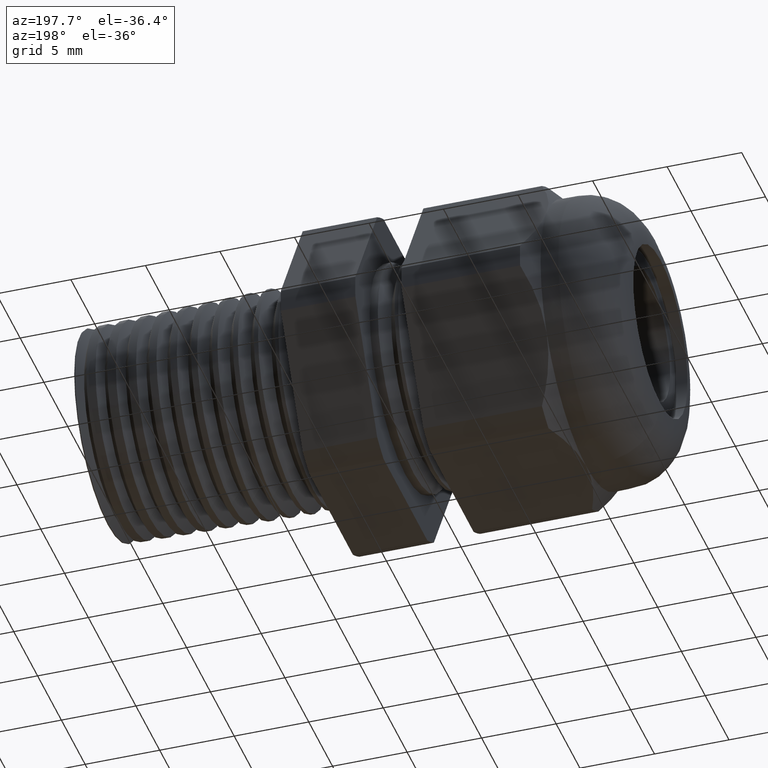
[diagram: clean part render]
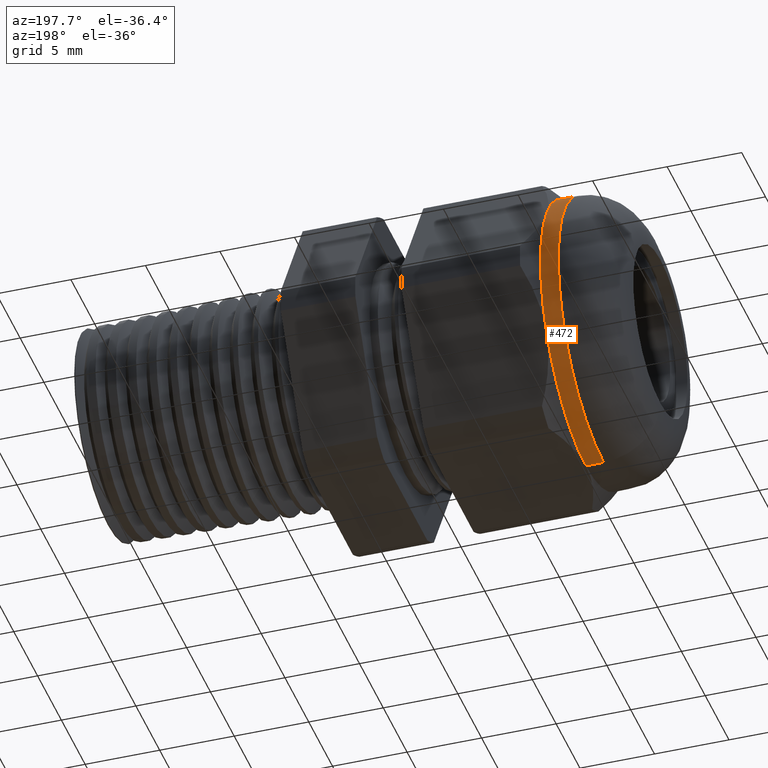
[diagram: same view with one face highlighted and labeled with its STEP entity id]
A machine part, auxiliary view. The second image highlights one B-rep face of the part: STEP entity #472.
In plain terms, the highlighted cylindrical surface (partial cylindrical patch) has radius 9.525 mm, axis along (1, 0, 0).
Its self-contained STEP definition (entity closure, byte-faithful):
#72 = VERTEX_POINT ( 'NONE', #1423 ) ;
#195 = EDGE_CURVE ( 'NONE', #196, #197, #1629, .T. ) ;
#196 = VERTEX_POINT ( 'NONE', #1624 ) ;
#197 = VERTEX_POINT ( 'NONE', #1623 ) ;
#461 = EDGE_CURVE ( 'NONE', #196, #72, #2184, .T. ) ;
#462 = ORIENTED_EDGE ( 'NONE', *, *, #461, .F. ) ;
#472 = ADVANCED_FACE ( 'NONE', ( #2161 ), #2160, .T. ) ;
#473 = EDGE_LOOP ( 'NONE', ( #474, #475, #478, #481, #484, #462 ) ) ;
#474 = ORIENTED_EDGE ( 'NONE', *, *, #195, .T. ) ;
#475 = ORIENTED_EDGE ( 'NONE', *, *, #476, .T. ) ;
#476 = EDGE_CURVE ( 'NONE', #197, #477, #2218, .T. ) ;
#477 = VERTEX_POINT ( 'NONE', #2214 ) ;
#478 = ORIENTED_EDGE ( 'NONE', *, *, #479, .F. ) ;
#479 = EDGE_CURVE ( 'NONE', #480, #477, #2213, .T. ) ;
#480 = VERTEX_POINT ( 'NONE', #2208 ) ;
#481 = ORIENTED_EDGE ( 'NONE', *, *, #482, .F. ) ;
#482 = EDGE_CURVE ( 'NONE', #483, #480, #2207, .T. ) ;
#483 = VERTEX_POINT ( 'NONE', #2202 ) ;
#484 = ORIENTED_EDGE ( 'NONE', *, *, #485, .F. ) ;
#485 = EDGE_CURVE ( 'NONE', #72, #483, #2200, .T. ) ;
#1423 = CARTESIAN_POINT ( 'NONE',  ( -0.9831496062992126600, 0.0000000000000000000, -0.3750000000000001100 ) ) ;
#1623 = CARTESIAN_POINT ( 'NONE',  ( -1.030000000000000000, 4.592425496802573600E-017, 0.3749999999999999400 ) ) ;
#1624 = CARTESIAN_POINT ( 'NONE',  ( -1.030000000000000000, 0.0000000000000000000, -0.3749999999999999400 ) ) ;
#1625 = DIRECTION ( 'NONE',  ( 0.0000000000000000000, 0.0000000000000000000, 1.000000000000000000 ) ) ;
#1626 = DIRECTION ( 'NONE',  ( 1.000000000000000000, 0.0000000000000000000, 0.0000000000000000000 ) ) ;
#1627 = CARTESIAN_POINT ( 'NONE',  ( -1.030000000000000000, 0.0000000000000000000, 0.0000000000000000000 ) ) ;
#1628 = AXIS2_PLACEMENT_3D ( 'NONE', #1627, #1626, #1625 ) ;
#1629 = CIRCLE ( 'NONE', #1628, 0.3749999999999999400 ) ;
#2157 = DIRECTION ( 'NONE',  ( 1.000000000000000000, 0.0000000000000000000, 0.0000000000000000000 ) ) ;
#2158 = CARTESIAN_POINT ( 'NONE',  ( 0.0000000000000000000, 0.0000000000000000000, 0.0000000000000000000 ) ) ;
#2159 = AXIS2_PLACEMENT_3D ( 'NONE', #2158, #2157, #2219 ) ;
#2160 = CYLINDRICAL_SURFACE ( 'NONE', #2159, 0.3749999999999999400 ) ;
#2161 = FACE_OUTER_BOUND ( 'NONE', #473, .T. ) ;
#2177 = DIRECTION ( 'NONE',  ( 1.000000000000000000, 0.0000000000000000000, 0.0000000000000000000 ) ) ;
#2178 = VECTOR ( 'NONE', #2177, 39.37007874015748100 ) ;
#2179 = CARTESIAN_POINT ( 'NONE',  ( 0.0000000000000000000, 0.0000000000000000000, -0.3749999999999999400 ) ) ;
#2184 = LINE ( 'NONE', #2179, #2178 ) ;
#2196 = DIRECTION ( 'NONE',  ( 0.0000000000000000000, 0.0000000000000000000, -1.000000000000000000 ) ) ;
#2197 = DIRECTION ( 'NONE',  ( 1.000000000000000000, 0.0000000000000000000, 0.0000000000000000000 ) ) ;
#2198 = CARTESIAN_POINT ( 'NONE',  ( -0.9831496062992126600, 0.0000000000000000000, 0.0000000000000000000 ) ) ;
#2199 = AXIS2_PLACEMENT_3D ( 'NONE', #2198, #2197, #2196 ) ;
#2200 = CIRCLE ( 'NONE', #2199, 0.3749999999999999400 ) ;
#2202 = CARTESIAN_POINT ( 'NONE',  ( -0.9831496062992126600, 0.3247595264191646700, -0.1875000000000001100 ) ) ;
#2203 = DIRECTION ( 'NONE',  ( 0.0000000000000000000, 0.0000000000000000000, -1.000000000000000000 ) ) ;
#2204 = DIRECTION ( 'NONE',  ( 1.000000000000000000, 0.0000000000000000000, 0.0000000000000000000 ) ) ;
#2205 = CARTESIAN_POINT ( 'NONE',  ( -0.9831496062992126600, 0.0000000000000000000, 0.0000000000000000000 ) ) ;
#2206 = AXIS2_PLACEMENT_3D ( 'NONE', #2205, #2204, #2203 ) ;
#2207 = CIRCLE ( 'NONE', #2206, 0.3749999999999999400 ) ;
#2208 = CARTESIAN_POINT ( 'NONE',  ( -0.9831496062992126600, 0.3247595264191645600, 0.1875000000000000800 ) ) ;
#2209 = DIRECTION ( 'NONE',  ( 0.0000000000000000000, 0.0000000000000000000, -1.000000000000000000 ) ) ;
#2210 = DIRECTION ( 'NONE',  ( 1.000000000000000000, 0.0000000000000000000, 0.0000000000000000000 ) ) ;
#2211 = CARTESIAN_POINT ( 'NONE',  ( -0.9831496062992126600, 0.0000000000000000000, 0.0000000000000000000 ) ) ;
#2212 = AXIS2_PLACEMENT_3D ( 'NONE', #2211, #2210, #2209 ) ;
#2213 = CIRCLE ( 'NONE', #2212, 0.3749999999999999400 ) ;
#2214 = CARTESIAN_POINT ( 'NONE',  ( -0.9831496062992126600, 0.0000000000000000000, 0.3749999999999999400 ) ) ;
#2215 = DIRECTION ( 'NONE',  ( 1.000000000000000000, 0.0000000000000000000, 0.0000000000000000000 ) ) ;
#2216 = VECTOR ( 'NONE', #2215, 39.37007874015748100 ) ;
#2217 = CARTESIAN_POINT ( 'NONE',  ( 0.0000000000000000000, 4.592425496802573600E-017, 0.3749999999999999400 ) ) ;
#2218 = LINE ( 'NONE', #2217, #2216 ) ;
#2219 = DIRECTION ( 'NONE',  ( 0.0000000000000000000, 0.0000000000000000000, -1.000000000000000000 ) ) ;